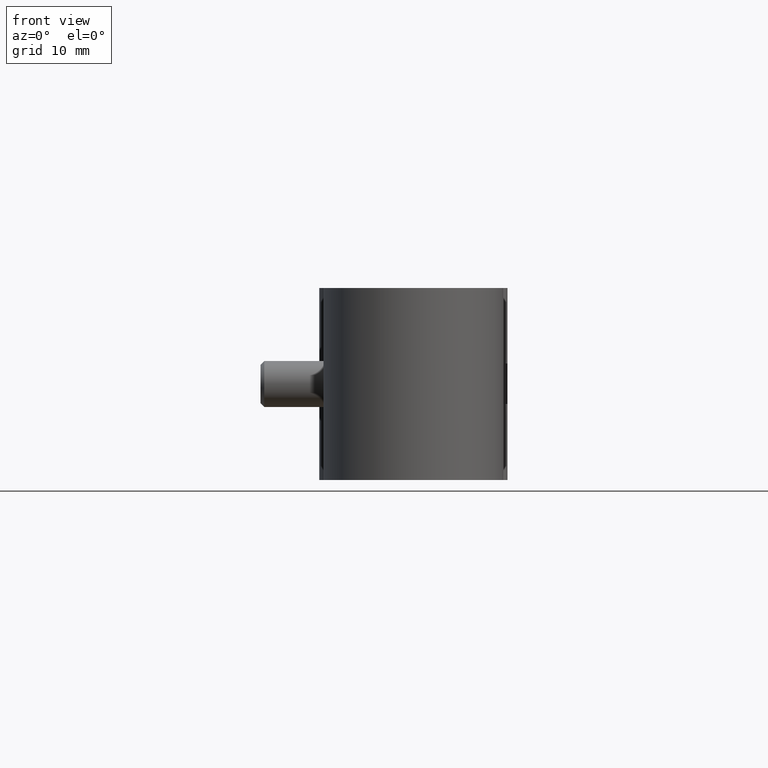
[diagram: clean part render]
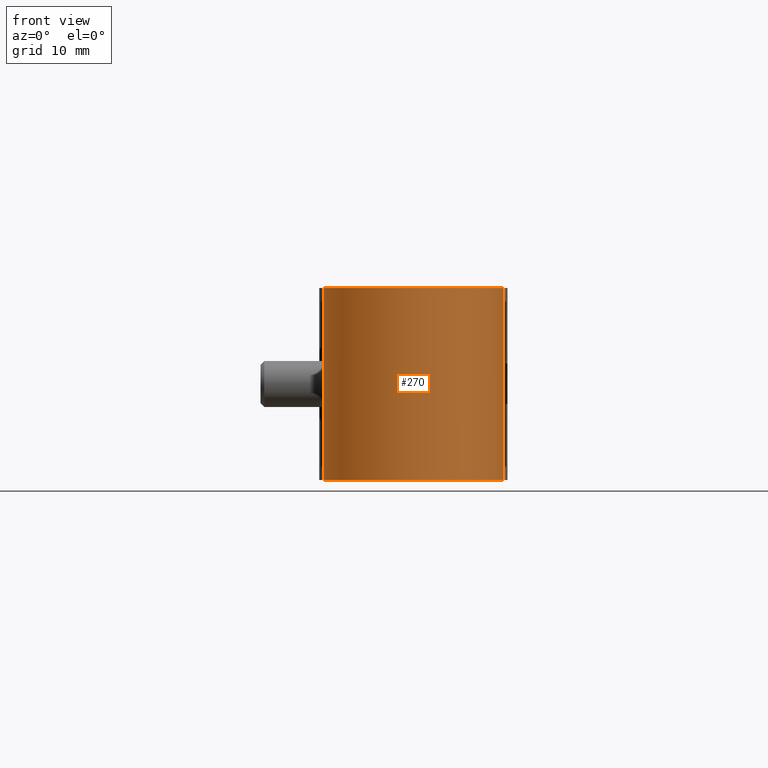
[diagram: same view with one face highlighted and labeled with its STEP entity id]
A machine part, front view. The second image highlights one B-rep face of the part: STEP entity #270.
In plain terms, the highlighted cylindrical surface (partial cylindrical patch) has radius 11.71 mm, axis along (0, 0, -1).
Its self-contained STEP definition (entity closure, byte-faithful):
#270 = ADVANCED_FACE( '', ( #396 ), #397, .T. );
#396 = FACE_OUTER_BOUND( '', #668, .T. );
#397 = CYLINDRICAL_SURFACE( '', #669, 11.7100000000000 );
#668 = EDGE_LOOP( '', ( #963, #964, #965, #966, #967, #968, #969, #970, #971, #972, #973, #974 ) );
#669 = AXIS2_PLACEMENT_3D( '', #975, #976, #977 );
#963 = ORIENTED_EDGE( '', *, *, #1953, .F. );
#964 = ORIENTED_EDGE( '', *, *, #1952, .T. );
#965 = ORIENTED_EDGE( '', *, *, #1954, .F. );
#966 = ORIENTED_EDGE( '', *, *, #1955, .F. );
#967 = ORIENTED_EDGE( '', *, *, #1956, .F. );
#968 = ORIENTED_EDGE( '', *, *, #1957, .F. );
#969 = ORIENTED_EDGE( '', *, *, #1958, .F. );
#970 = ORIENTED_EDGE( '', *, *, #1959, .F. );
#971 = ORIENTED_EDGE( '', *, *, #1941, .T. );
#972 = ORIENTED_EDGE( '', *, *, #1960, .T. );
#973 = ORIENTED_EDGE( '', *, *, #1961, .F. );
#974 = ORIENTED_EDGE( '', *, *, #1962, .F. );
#975 = CARTESIAN_POINT( '', ( 0.000000000000000, 0.000000000000000, -12.5000000000000 ) );
#976 = DIRECTION( '', ( 0.000000000000000, 0.000000000000000, -1.00000000000000 ) );
#977 = DIRECTION( '', ( -1.00000000000000, 6.06692130572647E-017, 0.000000000000000 ) );
#1941 = EDGE_CURVE( '', #2266, #2264, #2267, .T. );
#1952 = EDGE_CURVE( '', #2281, #2285, #2287, .T. );
#1953 = EDGE_CURVE( '', #2281, #2288, #2289, .F. );
#1954 = EDGE_CURVE( '', #2290, #2285, #2291, .T. );
#1955 = EDGE_CURVE( '', #2292, #2290, #2293, .T. );
#1956 = EDGE_CURVE( '', #2294, #2292, #2295, .F. );
#1957 = EDGE_CURVE( '', #2296, #2294, #2297, .T. );
#1958 = EDGE_CURVE( '', #2298, #2296, #2299, .F. );
#1959 = EDGE_CURVE( '', #2266, #2298, #2300, .T. );
#1960 = EDGE_CURVE( '', #2264, #2301, #2302, .T. );
#1961 = EDGE_CURVE( '', #2303, #2301, #2304, .F. );
#1962 = EDGE_CURVE( '', #2288, #2303, #2305, .T. );
#2264 = VERTEX_POINT( '', #2800 );
#2266 = VERTEX_POINT( '', #2802 );
#2267 = CIRCLE( '', #2803, 11.7100000000000 );
#2281 = VERTEX_POINT( '', #2821 );
#2285 = VERTEX_POINT( '', #2826 );
#2287 = LINE( '', #2828, #2829 );
#2288 = VERTEX_POINT( '', #2830 );
#2289 = ELLIPSE( '', #2831, 20.4157619767231, 11.7100000000000 );
#2290 = VERTEX_POINT( '', #2832 );
#2291 = CIRCLE( '', #2833, 11.7100000000000 );
#2292 = VERTEX_POINT( '', #2834 );
#2293 = LINE( '', #2835, #2836 );
#2294 = VERTEX_POINT( '', #2837 );
#2295 = ELLIPSE( '', #2838, 20.4157619767231, 11.7100000000000 );
#2296 = VERTEX_POINT( '', #2839 );
#2297 = B_SPLINE_CURVE_WITH_KNOTS( '', 3, ( #2840, #2841, #2842, #2843, #2844, #2845, #2846, #2847, #2848, #2849, #2850, #2851, #2852, #2853, #2854, #2855, #2856, #2857, #2858, #2859, #2860, #2861 ), .UNSPECIFIED., .F., .F., ( 4, 2, 2, 2, 2, 2, 2, 2, 2, 2, 4 ), ( 6.21254467325255E-017, 0.000781959312189693, 0.00156391862437932, 0.00234587793656895, 0.00273685759266377, 0.00312783724875858, 0.00351881690485340, 0.00390979656094821, 0.00469175587313784, 0.00547371518532747, 0.00625567449751710 ), .UNSPECIFIED. );
#2298 = VERTEX_POINT( '', #2862 );
#2299 = ELLIPSE( '', #2863, 20.4157619767231, 11.7100000000000 );
#2300 = LINE( '', #2864, #2865 );
#2301 = VERTEX_POINT( '', #2866 );
#2302 = LINE( '', #2867, #2868 );
#2303 = VERTEX_POINT( '', #2869 );
#2304 = ELLIPSE( '', #2870, 20.4157619767231, 11.7100000000000 );
#2305 = B_SPLINE_CURVE_WITH_KNOTS( '', 3, ( #2871, #2872, #2873, #2874, #2875, #2876, #2877, #2878, #2879, #2880, #2881, #2882, #2883, #2884, #2885, #2886, #2887, #2888, #2889, #2890, #2891, #2892 ), .UNSPECIFIED., .F., .F., ( 4, 2, 2, 2, 2, 2, 2, 2, 2, 2, 4 ), ( 0.000000000000000, 0.000781037746891712, 0.00156207549378342, 0.00234311324067513, 0.00273363211412099, 0.00312415098756685, 0.00351466986101271, 0.00390518873445856, 0.00468622648135028, 0.00546726422824199, 0.00624830197513370 ), .UNSPECIFIED. );
#2800 = CARTESIAN_POINT( '', ( 5.80587337909993, 10.1693625319318, -12.5000000000000 ) );
#2802 = CARTESIAN_POINT( '', ( -5.80587337909992, 10.1693625319318, -12.5000000000000 ) );
#2803 = AXIS2_PLACEMENT_3D( '', #3702, #3703, #3704 );
#2821 = CARTESIAN_POINT( '', ( 5.80587337909993, 10.1693625319318, 3.32934978562002 ) );
#2826 = CARTESIAN_POINT( '', ( 5.80587337909993, 10.1693625319318, 12.5000000000000 ) );
#2828 = CARTESIAN_POINT( '', ( 5.80587337909993, 10.1693625319318, -12.5000000000000 ) );
#2829 = VECTOR( '', #3725, 1000.00000000000 );
#2830 = CARTESIAN_POINT( '', ( 7.02857230078244, 9.36607022249320, 2.29430574540415 ) );
#2831 = AXIS2_PLACEMENT_3D( '', #3726, #3727, #3728 );
#2832 = CARTESIAN_POINT( '', ( -5.80587337909993, 10.1693625319318, 12.5000000000000 ) );
#2833 = AXIS2_PLACEMENT_3D( '', #3729, #3730, #3731 );
#2834 = CARTESIAN_POINT( '', ( -5.80587337909993, 10.1693625319318, 3.32934978562002 ) );
#2835 = CARTESIAN_POINT( '', ( -5.80587337909993, 10.1693625319318, -12.5000000000000 ) );
#2836 = VECTOR( '', #3732, 1000.00000000000 );
#2837 = CARTESIAN_POINT( '', ( -7.02857230078244, 9.36607022249320, 2.29430574540416 ) );
#2838 = AXIS2_PLACEMENT_3D( '', #3733, #3734, #3735 );
#2839 = CARTESIAN_POINT( '', ( -7.02857230078237, 9.36607022249325, -2.29430574540421 ) );
#2840 = CARTESIAN_POINT( '', ( -7.02857230078243, 9.36607022249320, -2.29430574540421 ) );
#2841 = CARTESIAN_POINT( '', ( -7.20672435077141, 9.23237972753268, -2.15428950897405 ) );
#2842 = CARTESIAN_POINT( '', ( -7.37619891917756, 9.09722521644071, -2.00740723745789 ) );
#2843 = CARTESIAN_POINT( '', ( -7.69626231503263, 8.82810078737945, -1.69521835458778 ) );
#2844 = CARTESIAN_POINT( '', ( -7.84701877567700, 8.69391665291917, -1.53023751231189 ) );
#2845 = CARTESIAN_POINT( '', ( -8.12376341962416, 8.43589700836306, -1.16910814891632 ) );
#2846 = CARTESIAN_POINT( '', ( -8.25214364526481, 8.30940145798248, -0.970624552407191 ) );
#2847 = CARTESIAN_POINT( '', ( -8.40057814462301, 8.15839252972567, -0.635684003116103 ) );
#2848 = CARTESIAN_POINT( '', ( -8.44300057864397, 8.11428821882880, -0.515898291004285 ) );
#2849 = CARTESIAN_POINT( '', ( -8.50209326926109, 8.05235009857318, -0.266138672259548 ) );
#2850 = CARTESIAN_POINT( '', ( -8.51890139127081, 8.03445201036027, -0.133045930906543 ) );
#2851 = CARTESIAN_POINT( '', ( -8.51910014069912, 8.03424127181393, 0.130575303358663 ) );
#2852 = CARTESIAN_POINT( '', ( -8.50268421281147, 8.05172519838293, 0.262678055008161 ) );
#2853 = CARTESIAN_POINT( '', ( -8.44383249556771, 8.11342161358959, 0.513322168226794 ) );
#2854 = CARTESIAN_POINT( '', ( -8.40247300180680, 8.15644212543673, 0.630811844189989 ) );
#2855 = CARTESIAN_POINT( '', ( -8.25379123122608, 8.30776944059587, 0.968067627659338 ) );
#2856 = CARTESIAN_POINT( '', ( -8.12774790823168, 8.43208284448701, 1.16338480827706 ) );
#2857 = CARTESIAN_POINT( '', ( -7.84949471545665, 8.69170523361640, 1.52751850994416 ) );
#2858 = CARTESIAN_POINT( '', ( -7.69628254604866, 8.82810365178761, 1.69524957019171 ) );
#2859 = CARTESIAN_POINT( '', ( -7.37487718689201, 9.09831663515723, 2.00864529555364 ) );
#2860 = CARTESIAN_POINT( '', ( -7.20559109099587, 9.23323015872514, 2.15518017943599 ) );
#2861 = CARTESIAN_POINT( '', ( -7.02857230078244, 9.36607022249320, 2.29430574540416 ) );
#2862 = CARTESIAN_POINT( '', ( -5.80587337909993, 10.1693625319318, -3.32934978562007 ) );
#2863 = AXIS2_PLACEMENT_3D( '', #3736, #3737, #3738 );
#2864 = CARTESIAN_POINT( '', ( -5.80587337909993, 10.1693625319318, -12.5000000000000 ) );
#2865 = VECTOR( '', #3739, 1000.00000000000 );
#2866 = CARTESIAN_POINT( '', ( 5.80587337909993, 10.1693625319318, -3.32934978562008 ) );
#2867 = CARTESIAN_POINT( '', ( 5.80587337909993, 10.1693625319318, -12.5000000000000 ) );
#2868 = VECTOR( '', #3740, 1000.00000000000 );
#2869 = CARTESIAN_POINT( '', ( 7.02857230078237, 9.36607022249325, -2.29430574540421 ) );
#2870 = AXIS2_PLACEMENT_3D( '', #3741, #3742, #3743 );
#2871 = CARTESIAN_POINT( '', ( 7.02857230078244, 9.36607022249320, 2.29430574540415 ) );
#2872 = CARTESIAN_POINT( '', ( 7.20651439260037, 9.23253728626866, 2.15445452280863 ) );
#2873 = CARTESIAN_POINT( '', ( 7.37579915718212, 9.09754409720483, 2.00775292313248 ) );
#2874 = CARTESIAN_POINT( '', ( 7.69553038095415, 8.82873342917808, 1.69597636555728 ) );
#2875 = CARTESIAN_POINT( '', ( 7.84614311993295, 8.69470342750182, 1.53122457505237 ) );
#2876 = CARTESIAN_POINT( '', ( 8.12268173297354, 8.43693493014501, 1.17067416167224 ) );
#2877 = CARTESIAN_POINT( '', ( 8.25099555682284, 8.31054352484544, 0.972541626491051 ) );
#2878 = CARTESIAN_POINT( '', ( 8.39957606857361, 8.15942474734038, 0.638276622381483 ) );
#2879 = CARTESIAN_POINT( '', ( 8.44209311334654, 8.11523364901966, 0.518753435922832 ) );
#2880 = CARTESIAN_POINT( '', ( 8.50153307016850, 8.05294286391164, 0.269462715809756 ) );
#2881 = CARTESIAN_POINT( '', ( 8.51859475373321, 8.03477714437595, 0.136652197218036 ) );
#2882 = CARTESIAN_POINT( '', ( 8.51939267071879, 8.03393109630771, -0.126724162578295 ) );
#2883 = CARTESIAN_POINT( '', ( 8.50332374671506, 8.05104758431067, -0.258665823392551 ) );
#2884 = CARTESIAN_POINT( '', ( 8.44505743329816, 8.11214440789724, -0.509353408964003 ) );
#2885 = CARTESIAN_POINT( '', ( 8.40396550614771, 8.15490128885809, -0.626844847126702 ) );
#2886 = CARTESIAN_POINT( '', ( 8.25605251763500, 8.30551033135291, -0.964071096983610 ) );
#2887 = CARTESIAN_POINT( '', ( 8.13032410283079, 8.42958874692052, -1.15953284965074 ) );
#2888 = CARTESIAN_POINT( '', ( 7.85281683724432, 8.68869404340908, -1.52364159150412 ) );
#2889 = CARTESIAN_POINT( '', ( 7.69987296882547, 8.82498849971216, -1.69150067792268 ) );
#2890 = CARTESIAN_POINT( '', ( 7.37751854701627, 9.09619073263814, -2.00631296093158 ) );
#2891 = CARTESIAN_POINT( '', ( 7.20720463940602, 9.23201930493138, -2.15391203250369 ) );
#2892 = CARTESIAN_POINT( '', ( 7.02857230078241, 9.36607022249322, -2.29430574540423 ) );
#3702 = CARTESIAN_POINT( '', ( 0.000000000000000, 0.000000000000000, -12.5000000000000 ) );
#3703 = DIRECTION( '', ( 0.000000000000000, 0.000000000000000, 1.00000000000000 ) );
#3704 = DIRECTION( '', ( 1.00000000000000, 0.000000000000000, 0.000000000000000 ) );
#3725 = DIRECTION( '', ( 0.000000000000000, 0.000000000000000, 1.00000000000000 ) );
#3726 = CARTESIAN_POINT( '', ( 0.000000000000000, 0.000000000000000, 17.3107260249057 ) );
#3727 = DIRECTION( '', ( 0.729869815763731, 0.371887245949431, 0.573576436351046 ) );
#3728 = DIRECTION( '', ( -0.511060346909496, -0.260398252977840, 0.819152044288992 ) );
#3729 = CARTESIAN_POINT( '', ( 0.000000000000000, 0.000000000000000, 12.5000000000000 ) );
#3730 = DIRECTION( '', ( 0.000000000000000, 0.000000000000000, 1.00000000000000 ) );
#3731 = DIRECTION( '', ( 1.00000000000000, 0.000000000000000, 0.000000000000000 ) );
#3732 = DIRECTION( '', ( 0.000000000000000, 0.000000000000000, 1.00000000000000 ) );
#3733 = CARTESIAN_POINT( '', ( 0.000000000000000, 0.000000000000000, 17.3107260249057 ) );
#3734 = DIRECTION( '', ( -0.729869815763731, 0.371887245949431, 0.573576436351046 ) );
#3735 = DIRECTION( '', ( 0.511060346909496, -0.260398252977840, 0.819152044288992 ) );
#3736 = CARTESIAN_POINT( '', ( 0.000000000000000, 0.000000000000000, -17.3107260249058 ) );
#3737 = DIRECTION( '', ( -0.729869815763730, 0.371887245949432, -0.573576436351046 ) );
#3738 = DIRECTION( '', ( -0.511060346909496, 0.260398252977840, 0.819152044288992 ) );
#3739 = DIRECTION( '', ( 0.000000000000000, 0.000000000000000, 1.00000000000000 ) );
#3740 = DIRECTION( '', ( 0.000000000000000, 0.000000000000000, 1.00000000000000 ) );
#3741 = CARTESIAN_POINT( '', ( 0.000000000000000, 0.000000000000000, -17.3107260249058 ) );
#3742 = DIRECTION( '', ( 0.729869815763730, 0.371887245949432, -0.573576436351046 ) );
#3743 = DIRECTION( '', ( 0.511060346909496, 0.260398252977840, 0.819152044288992 ) );